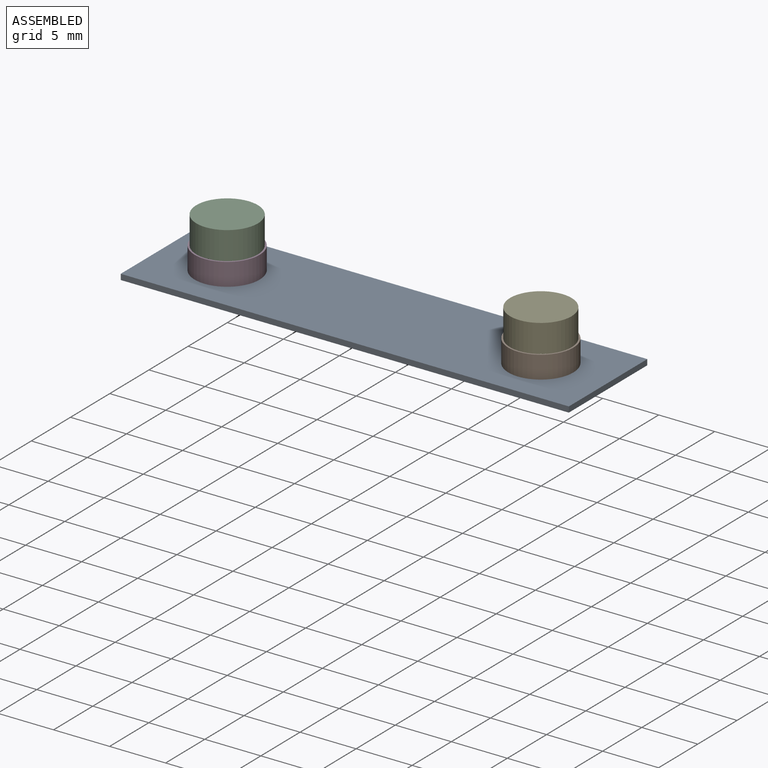
[diagram: assembled view]
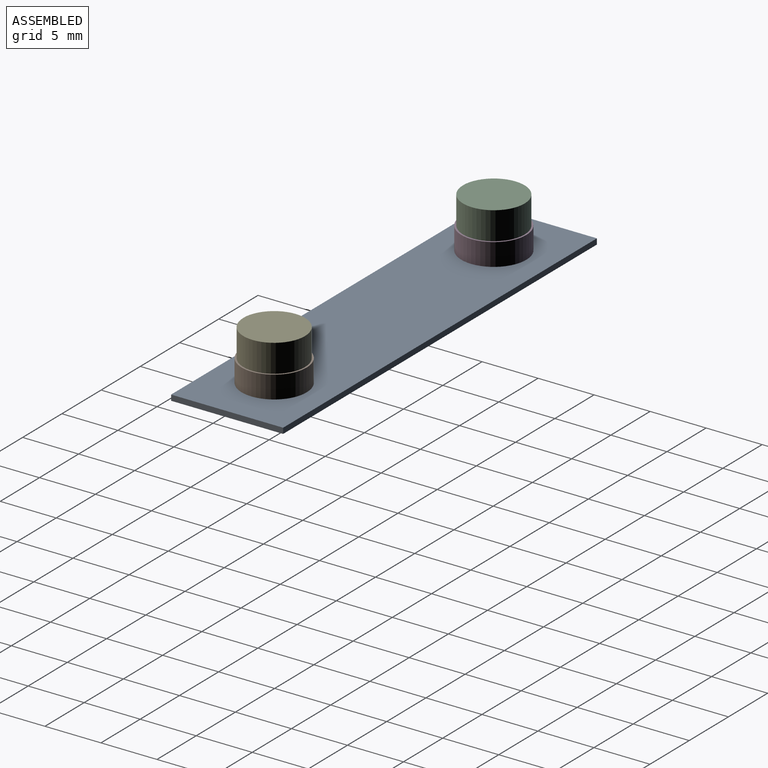
[diagram: assembled view, second angle]
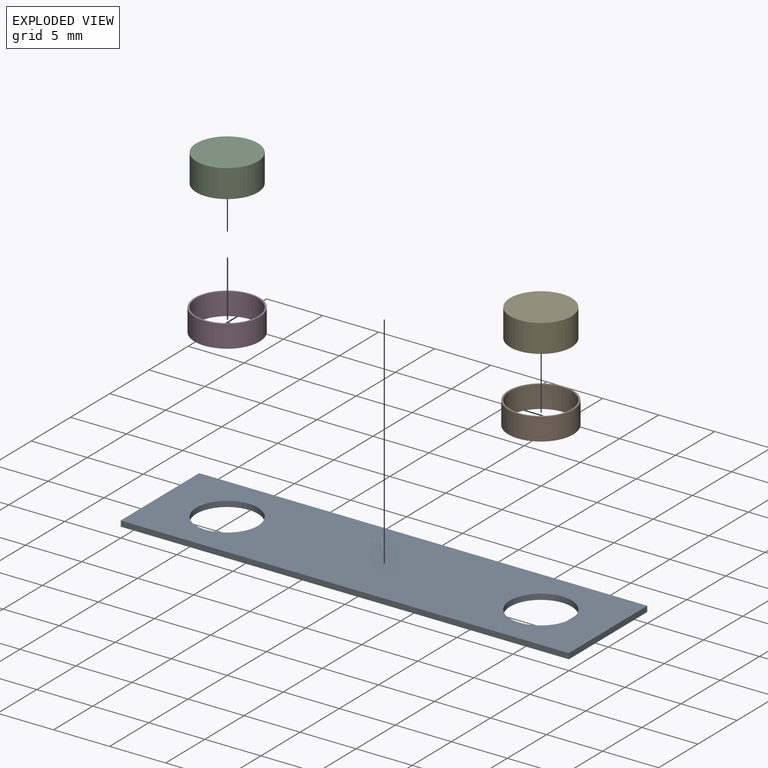
[diagram: exploded view]
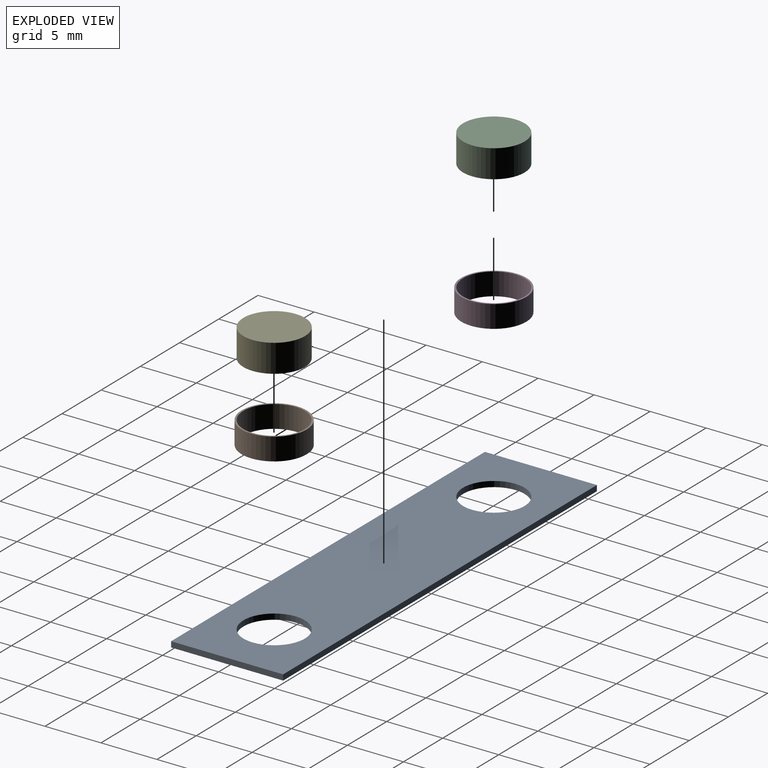
[diagram: exploded view, second angle]
ASSEMBLY  parts=5 mates=4
PART A: 8 faces, bbox 40x10x0.5 mm
  f0: plane 10x0.5mm, normal (1,0,0), area 5mm2, adj f1,f4,f6,f7
  f1: plane 40x0.5mm, normal (0,1,0), area 20mm2, adj f0,f2,f6,f7
  f2: plane 10x0.5mm, normal (-1,0,0), area 5mm2, adj f1,f4,f6,f7
  f3: cylinder r=2.75mm len=5.5mm, axis (0,0,-1), area 8.6mm2, adj f6,f7
  f4: plane 40x0.5mm, normal (0,-1,0), area 20mm2, adj f0,f2,f6,f7
  f5: cylinder r=2.75mm len=5.5mm, axis (0,0,-1), area 8.6mm2, adj f6,f7
  f6: plane 40x10mm, normal (0,0,1), area 352.5mm2, adj f0,f1,f2,f3,f4,f5
  f7: plane 40x10mm, normal (0,0,-1), area 352.5mm2, adj f0,f1,f2,f3,f4,f5
PART B: 4 faces, bbox 5.8x5.8x2 mm
  f0: cylinder r=2.75mm len=5.5mm, axis (0,0,-1), area 34.6mm2, adj f2,f3
  f1: cylinder r=2.9mm len=5.8mm, axis (0,0,-1), area 36.4mm2, adj f2,f3
  f2: plane 5.8x5.8mm, normal (0,0,1), area 2.7mm2, adj f0,f1
  f3: plane 5.8x5.8mm, normal (0,0,-1), area 2.7mm2, adj f0,f1
PART C: 5 faces, bbox 5.5x5.5x2.5 mm
  f0: cylinder r=2.6mm len=5.2mm, axis (0,0,-1), area 32.7mm2, adj f2,f3
  f1: cylinder r=2.75mm len=5.5mm, axis (0,0,-1), area 43.2mm2, adj f2,f4
  f2: plane 5.5x5.5mm, normal (0,0,1), area 2.5mm2, adj f0,f1
  f3: plane 5.2x5.2mm, normal (0,0,1), area 21.2mm2, adj f0
  f4: plane 5.5x5.5mm, normal (0,0,-1), area 23.8mm2, adj f1
PART D: same geometry as B
PART E: same geometry as C
PLACE A t=(-0.36,0.5,0.55)mm
PLACE B t=(13.64,0.5,1.05)mm
PLACE C rot(axis=(1,0,0),180deg) t=(-14.36,0.5,5.05)mm
PLACE D rot(axis=(1,0,0),180deg) t=(-14.36,0.5,3.05)mm
PLACE E rot(axis=(1,0,0),180deg) t=(13.64,0.5,5.05)mm
MATE fastened C.f0 <-> D.f0  axis (0,0,1) through (-14.36,0.5,3.05)mm
MATE fastened B.f0 <-> A.f5  axis (0,0,-1) through (13.64,0.5,1.05)mm
MATE fastened D.f0 <-> A.f3  axis (0,0,1) through (-14.36,0.5,1.05)mm
MATE fastened B.f0 <-> E.f0  axis (0,0,1) through (13.64,0.5,3.05)mm
